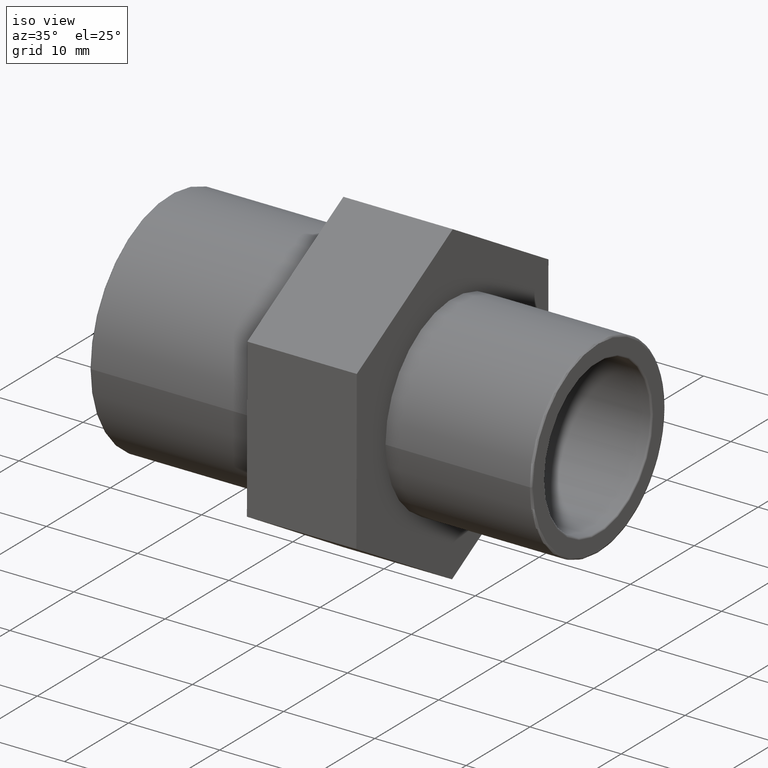
[diagram: clean part render]
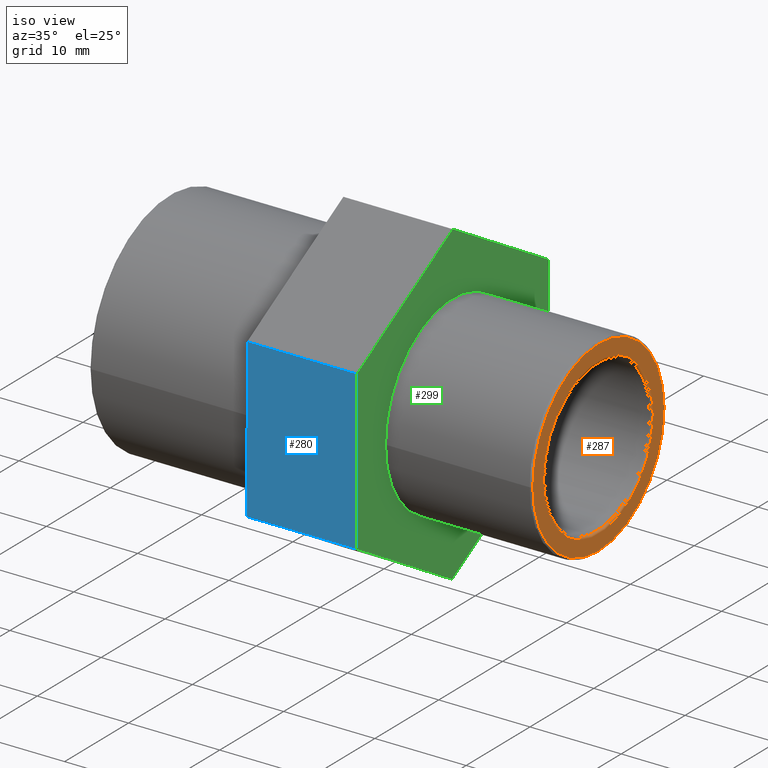
[diagram: same view with three faces highlighted in distinct colors, each labeled with its STEP entity id]
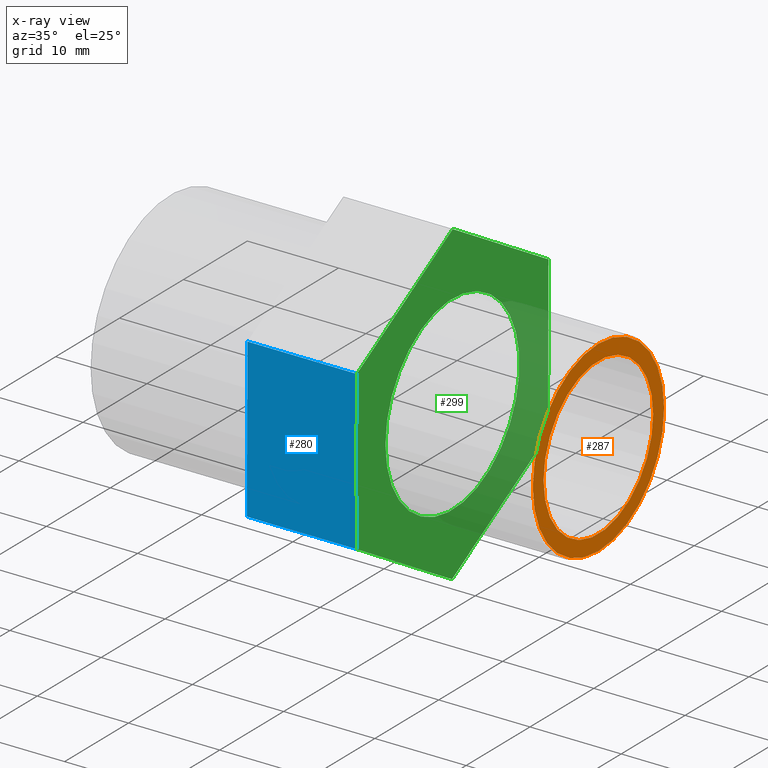
[diagram: x-ray of the same camera — body ghosted, the three highlighted faces saturated]
A machine part, iso view with three faces highlighted in distinct colors.
The next image is the same camera in x-ray (body ghosted, the three faces saturated) — at least one of them is partly hidden behind the body in this view.
Their STEP definitions:

[orange] entity #287 — the highlighted planar face has unit normal (1, 0, 0).
#21=FACE_BOUND('',#83,.T.);
#36=CIRCLE('',#311,8.58200000000001);
#37=CIRCLE('',#313,10.2775);
#60=FACE_OUTER_BOUND('',#82,.T.);
#82=EDGE_LOOP('',(#230));
#83=EDGE_LOOP('',(#231));
#159=VERTEX_POINT('',#468);
#160=VERTEX_POINT('',#471);
#191=EDGE_CURVE('',#159,#159,#36,.T.);
#192=EDGE_CURVE('',#160,#160,#37,.T.);
#230=ORIENTED_EDGE('',*,*,#192,.F.);
#231=ORIENTED_EDGE('',*,*,#191,.F.);
#274=PLANE('',#312);
#287=ADVANCED_FACE('',(#60,#21),#274,.T.);
#311=AXIS2_PLACEMENT_3D('',#469,#374,#375);
#312=AXIS2_PLACEMENT_3D('',#470,#376,#377);
#313=AXIS2_PLACEMENT_3D('',#472,#378,#379);
#374=DIRECTION('center_axis',(1.,6.73555739531044E-16,0.));
#375=DIRECTION('ref_axis',(-6.73555739531044E-16,1.,6.12323399573677E-17));
#376=DIRECTION('center_axis',(1.,6.73555739531044E-16,0.));
#377=DIRECTION('ref_axis',(0.,0.,-1.));
#378=DIRECTION('center_axis',(-1.,-6.73555739531044E-16,0.));
#379=DIRECTION('ref_axis',(-6.73555739531044E-16,1.,6.12323399573677E-17));
#468=CARTESIAN_POINT('',(23.5,-8.58199999999999,-1.57648782454239E-15));
#469=CARTESIAN_POINT('Origin',(23.5,2.0145439845974E-14,0.));
#470=CARTESIAN_POINT('Origin',(23.5,-10.4775,0.));
#471=CARTESIAN_POINT('',(23.5,-10.2775,6.29315373911847E-16));
#472=CARTESIAN_POINT('Origin',(23.5,2.0145439845974E-14,0.));

[blue] entity #280 — the highlighted planar face has unit normal (0, -1, 0.0036).
#53=FACE_OUTER_BOUND('',#74,.T.);
#74=EDGE_LOOP('',(#204,#205,#206,#207));
#110=LINE('',#432,#128);
#111=LINE('',#434,#129);
#112=LINE('',#436,#130);
#113=LINE('',#437,#131);
#128=VECTOR('',#342,17.3205080756889);
#129=VECTOR('',#343,12.);
#130=VECTOR('',#344,17.3205080756889);
#131=VECTOR('',#345,12.);
#146=VERTEX_POINT('',#430);
#147=VERTEX_POINT('',#431);
#148=VERTEX_POINT('',#433);
#149=VERTEX_POINT('',#435);
#172=EDGE_CURVE('',#146,#147,#110,.T.);
#173=EDGE_CURVE('',#148,#147,#111,.T.);
#174=EDGE_CURVE('',#148,#149,#112,.T.);
#175=EDGE_CURVE('',#149,#146,#113,.T.);
#204=ORIENTED_EDGE('',*,*,#172,.T.);
#205=ORIENTED_EDGE('',*,*,#173,.F.);
#206=ORIENTED_EDGE('',*,*,#174,.T.);
#207=ORIENTED_EDGE('',*,*,#175,.T.);
#268=PLANE('',#303);
#280=ADVANCED_FACE('',(#53),#268,.T.);
#303=AXIS2_PLACEMENT_3D('',#429,#340,#341);
#340=DIRECTION('center_axis',(6.16786529508789E-16,-0.999993450406666,0.00361927392861581));
#341=DIRECTION('ref_axis',(0.,-0.00361927392861574,-0.999993450406666));
#342=DIRECTION('',(-2.43778272755425E-18,0.00361927392861581,0.999993450406666));
#343=DIRECTION('',(1.,6.1679056923619E-16,0.));
#344=DIRECTION('',(2.43778272755425E-18,-0.00361927392861581,-0.999993450406666));
#345=DIRECTION('',(1.,6.1679056923619E-16,0.));
#429=CARTESIAN_POINT('Origin',(-4.5,-14.9685579244456,8.7144864256315));
#430=CARTESIAN_POINT('',(7.50000000000002,-15.0312455877544,-8.60590820777316));
#431=CARTESIAN_POINT('',(7.50000000000002,-14.9685579244456,8.7144864256315));
#432=CARTESIAN_POINT('',(7.50000000000002,-14.9842298402728,4.38438776728037));
#433=CARTESIAN_POINT('',(-4.5,-14.9685579244456,8.7144864256315));
#434=CARTESIAN_POINT('',(-4.5,-14.9685579244456,8.7144864256315));
#435=CARTESIAN_POINT('',(-4.5,-15.0312455877544,-8.60590820777316));
#436=CARTESIAN_POINT('',(-4.5,-14.9685579244456,8.7144864256315));
#437=CARTESIAN_POINT('',(-4.5,-15.0312455877544,-8.60590820777316));

[green] entity #299 — the highlighted planar face has unit normal (1, 0, 0).
#33=FACE_BOUND('',#107,.T.);
#40=CIRCLE('',#319,10.4775);
#72=FACE_OUTER_BOUND('',#106,.T.);
#106=EDGE_LOOP('',(#254,#255,#256,#257,#258,#259));
#107=EDGE_LOOP('',(#260));
#110=LINE('',#432,#128);
#114=LINE('',#440,#132);
#117=LINE('',#446,#135);
#120=LINE('',#453,#138);
#124=LINE('',#460,#142);
#126=LINE('',#463,#144);
#128=VECTOR('',#342,17.3205080756889);
#132=VECTOR('',#348,17.3205080756888);
#135=VECTOR('',#353,17.3205080756888);
#138=VECTOR('',#358,17.3205080756888);
#142=VECTOR('',#364,17.3205080756888);
#144=VECTOR('',#368,17.3205080756888);
#146=VERTEX_POINT('',#430);
#147=VERTEX_POINT('',#431);
#150=VERTEX_POINT('',#439);
#152=VERTEX_POINT('',#445);
#154=VERTEX_POINT('',#451);
#155=VERTEX_POINT('',#452);
#163=VERTEX_POINT('',#480);
#172=EDGE_CURVE('',#146,#147,#110,.T.);
#176=EDGE_CURVE('',#147,#150,#114,.T.);
#179=EDGE_CURVE('',#150,#152,#117,.T.);
#182=EDGE_CURVE('',#154,#155,#120,.T.);
#186=EDGE_CURVE('',#155,#146,#124,.T.);
#188=EDGE_CURVE('',#152,#154,#126,.T.);
#195=EDGE_CURVE('',#163,#163,#40,.T.);
#254=ORIENTED_EDGE('',*,*,#186,.F.);
#255=ORIENTED_EDGE('',*,*,#182,.F.);
#256=ORIENTED_EDGE('',*,*,#188,.F.);
#257=ORIENTED_EDGE('',*,*,#179,.F.);
#258=ORIENTED_EDGE('',*,*,#176,.F.);
#259=ORIENTED_EDGE('',*,*,#172,.F.);
#260=ORIENTED_EDGE('',*,*,#195,.T.);
#278=PLANE('',#336);
#299=ADVANCED_FACE('',(#72,#33),#278,.T.);
#319=AXIS2_PLACEMENT_3D('',#481,#390,#391);
#336=AXIS2_PLACEMENT_3D('',#506,#424,#425);
#342=DIRECTION('',(-2.43778272755425E-18,0.00361927392861581,0.999993450406666));
#348=DIRECTION('',(-5.84531452177392E-16,0.867829368634534,0.4968623420379));
#353=DIRECTION('',(-5.8209366944984E-16,0.86421009470592,-0.503131108368768));
#358=DIRECTION('',(5.84531452177392E-16,-0.867829368634533,-0.496862342037901));
#364=DIRECTION('',(5.82093669449842E-16,-0.864210094705923,0.503131108368763));
#368=DIRECTION('',(2.43778272755133E-18,-0.00361927392861147,-0.999993450406666));
#390=DIRECTION('center_axis',(-1.,-6.73555739531044E-16,0.));
#391=DIRECTION('ref_axis',(0.,0.,1.));
#424=DIRECTION('center_axis',(1.,6.73555739531044E-16,0.));
#425=DIRECTION('ref_axis',(0.,0.,-1.));
#430=CARTESIAN_POINT('',(7.50000000000002,-15.0312455877544,-8.60590820777316));
#431=CARTESIAN_POINT('',(7.50000000000002,-14.9685579244456,8.7144864256315));
#432=CARTESIAN_POINT('',(7.50000000000002,-14.9842298402728,4.38438776728037));
#439=CARTESIAN_POINT('',(7.50000000000001,0.0626876633086959,17.3203946334046));
#440=CARTESIAN_POINT('',(7.50000000000002,-3.6951237336299,15.1689175814613));
#445=CARTESIAN_POINT('',(7.5,15.0312455877544,8.60590820777309));
#446=CARTESIAN_POINT('',(7.50000000000001,11.2891061066429,10.784529814181));
#451=CARTESIAN_POINT('',(7.5,14.9685579244457,-8.71448642563145));
#452=CARTESIAN_POINT('',(7.50000000000001,-0.0626876633086337,-17.3203946334046));
#453=CARTESIAN_POINT('',(7.50000000000001,3.69512373362995,-15.1689175814613));
#460=CARTESIAN_POINT('',(7.50000000000002,-11.2891061066429,-10.784529814181));
#463=CARTESIAN_POINT('',(7.5,14.9999017561,-0.054289108929181));
#480=CARTESIAN_POINT('',(7.50000000000002,-10.4775,0.));
#481=CARTESIAN_POINT('Origin',(7.50000000000001,9.36854801347726E-15,0.));
#506=CARTESIAN_POINT('Origin',(7.50000000000003,-15.,0.));